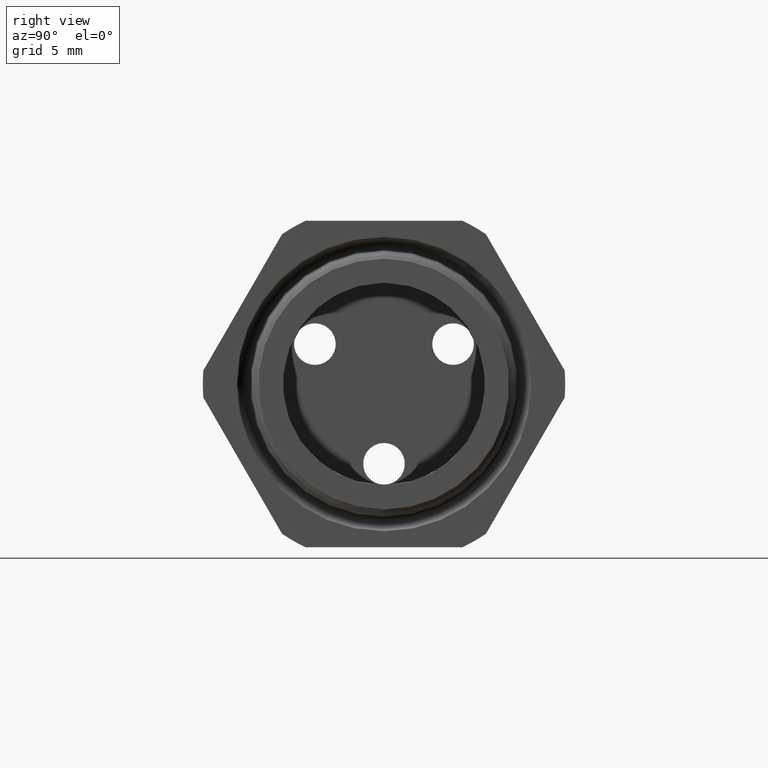
[diagram: clean part render]
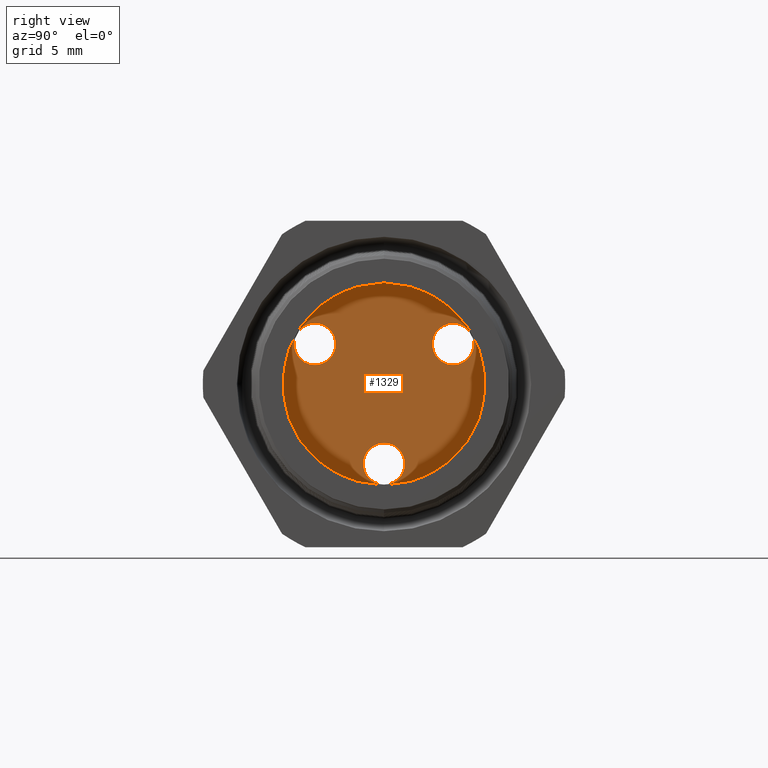
[diagram: same view with one face highlighted and labeled with its STEP entity id]
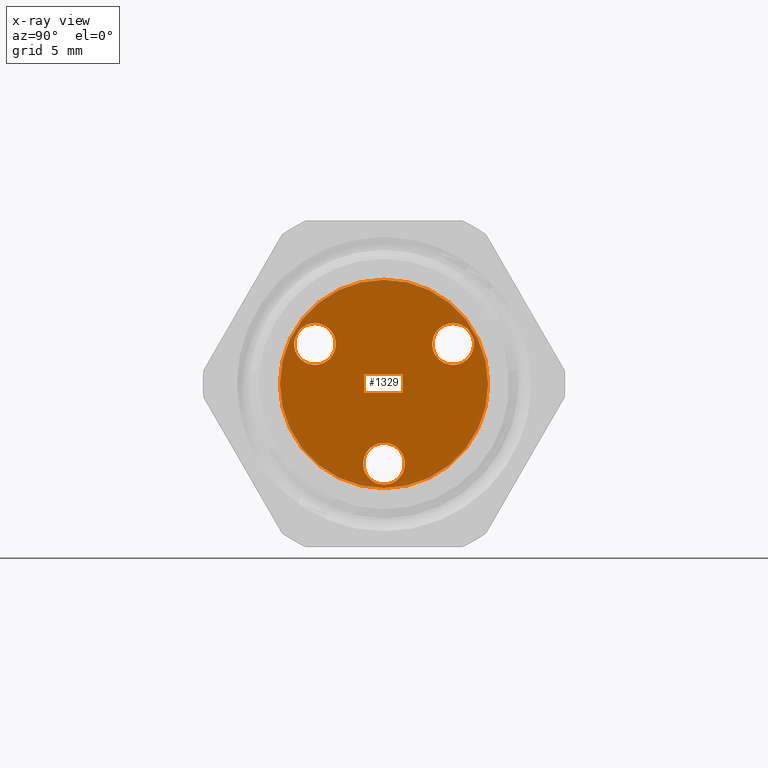
[diagram: x-ray of the same camera — body ghosted, the highlighted face saturated]
A machine part, right view. The second image highlights one B-rep face of the part: STEP entity #1329.
The next image is the same camera in x-ray: the body ghosted, the highlighted face saturated — about 7% of this face is hidden behind the body in this view.
In plain terms, the highlighted planar face has unit normal (-1, 0, 0).
Its self-contained STEP definition (entity closure, byte-faithful):
#1243 = EDGE_CURVE ( 'NONE', #1244, #1245, #3952, .T. ) ;
#1244 = VERTEX_POINT ( 'NONE', #3947 ) ;
#1245 = VERTEX_POINT ( 'NONE', #3946 ) ;
#1249 = EDGE_CURVE ( 'NONE', #1250, #1251, #3936, .T. ) ;
#1250 = VERTEX_POINT ( 'NONE', #3931 ) ;
#1251 = VERTEX_POINT ( 'NONE', #3930 ) ;
#1299 = EDGE_CURVE ( 'NONE', #1302, #1301, #3986, .T. ) ;
#1301 = VERTEX_POINT ( 'NONE', #4045 ) ;
#1302 = VERTEX_POINT ( 'NONE', #4044 ) ;
#1312 = EDGE_CURVE ( 'NONE', #1301, #1302, #4026, .T. ) ;
#1322 = EDGE_LOOP ( 'NONE', ( #1416, #1417 ) ) ;
#1329 = ADVANCED_FACE ( 'NONE', ( #4070, #4065, #4064, #4063 ), #4062, .F. ) ;
#1330 = EDGE_LOOP ( 'NONE', ( #1331, #1384 ) ) ;
#1331 = ORIENTED_EDGE ( 'NONE', *, *, #1332, .T. ) ;
#1332 = EDGE_CURVE ( 'NONE', #1359, #1358, #4057, .T. ) ;
#1357 = EDGE_CURVE ( 'NONE', #1358, #1359, #4136, .T. ) ;
#1358 = VERTEX_POINT ( 'NONE', #4131 ) ;
#1359 = VERTEX_POINT ( 'NONE', #4130 ) ;
#1382 = EDGE_LOOP ( 'NONE', ( #1383, #1434 ) ) ;
#1383 = ORIENTED_EDGE ( 'NONE', *, *, #1433, .T. ) ;
#1384 = ORIENTED_EDGE ( 'NONE', *, *, #1357, .T. ) ;
#1397 = ORIENTED_EDGE ( 'NONE', *, *, #1243, .T. ) ;
#1416 = ORIENTED_EDGE ( 'NONE', *, *, #1312, .F. ) ;
#1417 = ORIENTED_EDGE ( 'NONE', *, *, #1299, .F. ) ;
#1431 = ORIENTED_EDGE ( 'NONE', *, *, #1432, .T. ) ;
#1432 = EDGE_CURVE ( 'NONE', #1245, #1244, #4226, .T. ) ;
#1433 = EDGE_CURVE ( 'NONE', #1251, #1250, #4220, .T. ) ;
#1434 = ORIENTED_EDGE ( 'NONE', *, *, #1249, .T. ) ;
#1435 = EDGE_LOOP ( 'NONE', ( #1431, #1397 ) ) ;
#3930 = CARTESIAN_POINT ( 'NONE',  ( -1.020000000000000500, -0.1989779967735121300, 0.1748800000000009500 ) ) ;
#3931 = CARTESIAN_POINT ( 'NONE',  ( -1.020000000000000500, -0.1989779967735121300, 0.05488000000000091400 ) ) ;
#3932 = DIRECTION ( 'NONE',  ( 0.0000000000000000000, 0.8660254037844362700, -0.5000000000000041100 ) ) ;
#3933 = DIRECTION ( 'NONE',  ( -1.000000000000000000, 0.0000000000000000000, 0.0000000000000000000 ) ) ;
#3934 = CARTESIAN_POINT ( 'NONE',  ( -1.020000000000000500, -0.1989779967735121300, 0.1148800000000009300 ) ) ;
#3935 = AXIS2_PLACEMENT_3D ( 'NONE', #3934, #3933, #3932 ) ;
#3936 = CIRCLE ( 'NONE', #3935, 0.06000000000000002600 ) ;
#3946 = CARTESIAN_POINT ( 'NONE',  ( -1.020000000000000500, 0.0000000000000000000, -0.1697599999999999700 ) ) ;
#3947 = CARTESIAN_POINT ( 'NONE',  ( -1.020000000000000500, 7.347880794884123000E-018, -0.2897600000000000200 ) ) ;
#3948 = DIRECTION ( 'NONE',  ( 0.0000000000000000000, 0.0000000000000000000, 1.000000000000000000 ) ) ;
#3949 = DIRECTION ( 'NONE',  ( -1.000000000000000000, 0.0000000000000000000, 0.0000000000000000000 ) ) ;
#3950 = CARTESIAN_POINT ( 'NONE',  ( -1.020000000000000500, 0.0000000000000000000, -0.2297599999999999900 ) ) ;
#3951 = AXIS2_PLACEMENT_3D ( 'NONE', #3950, #3949, #3948 ) ;
#3952 = CIRCLE ( 'NONE', #3951, 0.06000000000000001200 ) ;
#3986 = CIRCLE ( 'NONE', #4048, 0.2999999999999999900 ) ;
#3991 = CARTESIAN_POINT ( 'NONE',  ( -1.020000000000000500, 0.0000000000000000000, 0.0000000000000000000 ) ) ;
#4023 = DIRECTION ( 'NONE',  ( 0.0000000000000000000, 0.0000000000000000000, 1.000000000000000000 ) ) ;
#4024 = DIRECTION ( 'NONE',  ( -1.000000000000000000, 0.0000000000000000000, 0.0000000000000000000 ) ) ;
#4025 = AXIS2_PLACEMENT_3D ( 'NONE', #4031, #4024, #4023 ) ;
#4026 = CIRCLE ( 'NONE', #4025, 0.2999999999999999900 ) ;
#4031 = CARTESIAN_POINT ( 'NONE',  ( -1.020000000000000500, 0.0000000000000000000, 0.0000000000000000000 ) ) ;
#4044 = CARTESIAN_POINT ( 'NONE',  ( -1.020000000000000500, 3.673940397442058900E-017, -0.2999999999999999900 ) ) ;
#4045 = CARTESIAN_POINT ( 'NONE',  ( -1.020000000000000500, 0.0000000000000000000, 0.2999999999999999900 ) ) ;
#4046 = DIRECTION ( 'NONE',  ( 0.0000000000000000000, 0.0000000000000000000, 1.000000000000000000 ) ) ;
#4047 = DIRECTION ( 'NONE',  ( -1.000000000000000000, 0.0000000000000000000, 0.0000000000000000000 ) ) ;
#4048 = AXIS2_PLACEMENT_3D ( 'NONE', #3991, #4047, #4046 ) ;
#4053 = DIRECTION ( 'NONE',  ( 0.0000000000000000000, -0.8660254037844432600, -0.4999999999999919500 ) ) ;
#4054 = DIRECTION ( 'NONE',  ( -1.000000000000000000, 0.0000000000000000000, 0.0000000000000000000 ) ) ;
#4055 = CARTESIAN_POINT ( 'NONE',  ( -1.020000000000000500, 0.1989779967735136600, 0.1148799999999981500 ) ) ;
#4056 = AXIS2_PLACEMENT_3D ( 'NONE', #4055, #4054, #4053 ) ;
#4057 = CIRCLE ( 'NONE', #4056, 0.06000000000000001900 ) ;
#4058 = DIRECTION ( 'NONE',  ( 0.0000000000000000000, 0.0000000000000000000, 1.000000000000000000 ) ) ;
#4059 = DIRECTION ( 'NONE',  ( -1.000000000000000000, 0.0000000000000000000, 0.0000000000000000000 ) ) ;
#4060 = CARTESIAN_POINT ( 'NONE',  ( -1.020000000000000500, 0.0000000000000000000, 0.0000000000000000000 ) ) ;
#4061 = AXIS2_PLACEMENT_3D ( 'NONE', #4060, #4059, #4058 ) ;
#4062 = PLANE ( 'NONE',  #4061 ) ;
#4063 = FACE_OUTER_BOUND ( 'NONE', #1322, .T. ) ;
#4064 = FACE_BOUND ( 'NONE', #1435, .T. ) ;
#4065 = FACE_BOUND ( 'NONE', #1382, .T. ) ;
#4070 = FACE_BOUND ( 'NONE', #1330, .T. ) ;
#4130 = CARTESIAN_POINT ( 'NONE',  ( -1.020000000000000500, 0.1989779967735136600, 0.1748799999999982000 ) ) ;
#4131 = CARTESIAN_POINT ( 'NONE',  ( -1.020000000000000500, 0.1989779967735136600, 0.05487999999999812500 ) ) ;
#4132 = DIRECTION ( 'NONE',  ( 0.0000000000000000000, -0.8660254037844432600, -0.4999999999999919500 ) ) ;
#4133 = DIRECTION ( 'NONE',  ( -1.000000000000000000, 0.0000000000000000000, 0.0000000000000000000 ) ) ;
#4134 = CARTESIAN_POINT ( 'NONE',  ( -1.020000000000000500, 0.1989779967735136600, 0.1148799999999981500 ) ) ;
#4135 = AXIS2_PLACEMENT_3D ( 'NONE', #4134, #4133, #4132 ) ;
#4136 = CIRCLE ( 'NONE', #4135, 0.06000000000000001900 ) ;
#4216 = DIRECTION ( 'NONE',  ( 0.0000000000000000000, 0.8660254037844362700, -0.5000000000000041100 ) ) ;
#4217 = DIRECTION ( 'NONE',  ( -1.000000000000000000, 0.0000000000000000000, 0.0000000000000000000 ) ) ;
#4218 = CARTESIAN_POINT ( 'NONE',  ( -1.020000000000000500, -0.1989779967735121300, 0.1148800000000009300 ) ) ;
#4219 = AXIS2_PLACEMENT_3D ( 'NONE', #4218, #4217, #4216 ) ;
#4220 = CIRCLE ( 'NONE', #4219, 0.06000000000000002600 ) ;
#4222 = DIRECTION ( 'NONE',  ( 0.0000000000000000000, 0.0000000000000000000, 1.000000000000000000 ) ) ;
#4223 = DIRECTION ( 'NONE',  ( -1.000000000000000000, 0.0000000000000000000, 0.0000000000000000000 ) ) ;
#4224 = CARTESIAN_POINT ( 'NONE',  ( -1.020000000000000500, 0.0000000000000000000, -0.2297599999999999900 ) ) ;
#4225 = AXIS2_PLACEMENT_3D ( 'NONE', #4224, #4223, #4222 ) ;
#4226 = CIRCLE ( 'NONE', #4225, 0.06000000000000001200 ) ;